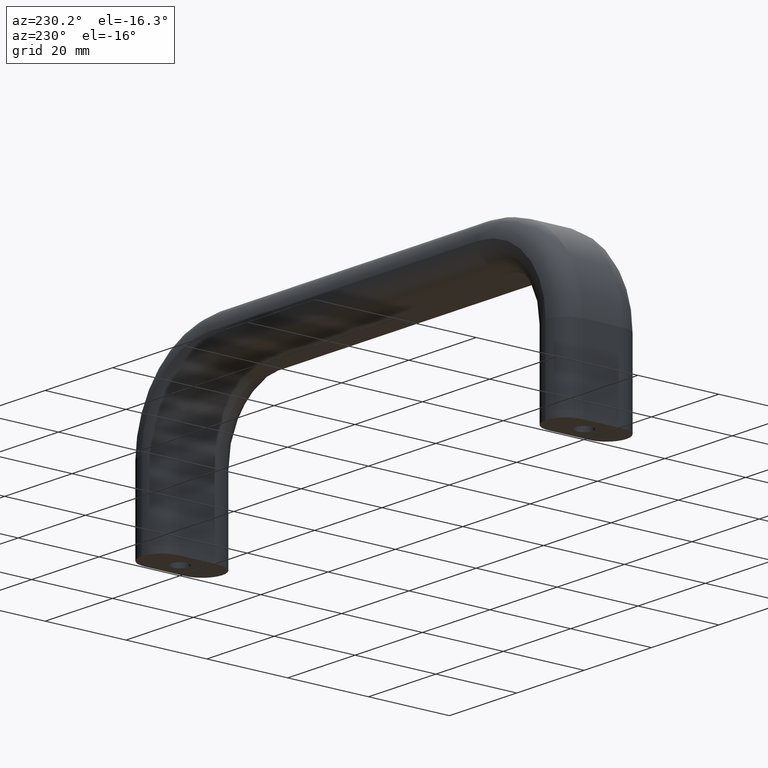
[diagram: clean part render]
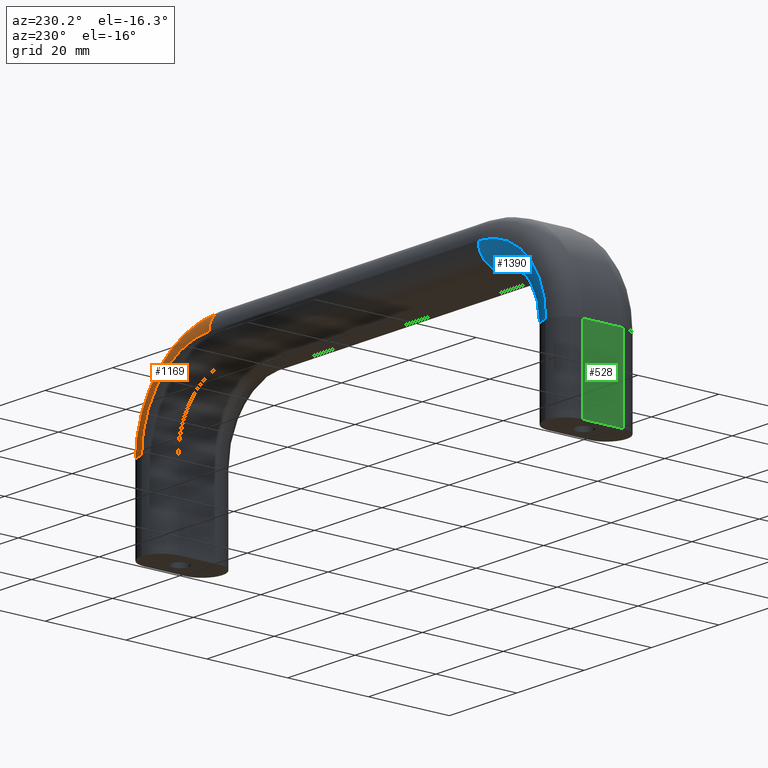
[diagram: same view with three faces highlighted in distinct colors, each labeled with its STEP entity id]
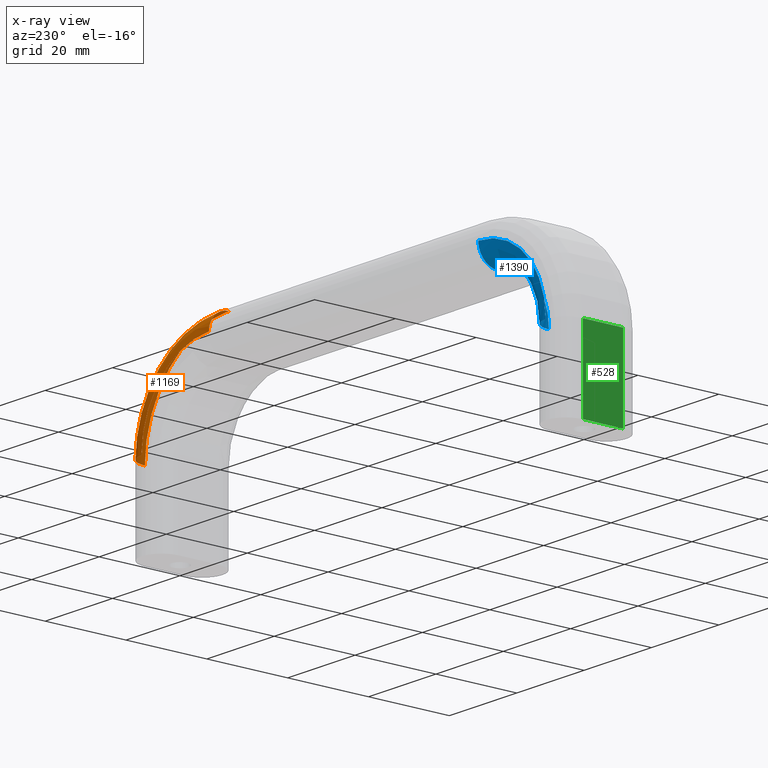
[diagram: x-ray of the same camera — body ghosted, the three highlighted faces saturated]
A machine part, auxiliary view with three faces highlighted in distinct colors.
The next image is the same camera in x-ray (body ghosted, the three faces saturated) — at least one of them is partly hidden behind the body in this view.
Their STEP definitions:

[orange] entity #1169 — the highlighted face is a freeform B-spline surface patch.
#89=CARTESIAN_POINT('',(120.0,9.500000000000002,20.0));
#90=VERTEX_POINT('',#89);
#258=CARTESIAN_POINT('',(125.0,4.500000000000001,20.0));
#259=VERTEX_POINT('',#258);
#260=CARTESIAN_POINT('',(120.0,4.500000000000001,20.0));
#261=DIRECTION('',(0.0,6.123234E-017,1.0));
#262=DIRECTION('',(1.0,0.0,0.0));
#263=AXIS2_PLACEMENT_3D('',#260,#261,#262);
#264=CIRCLE('',#263,5.0);
#265=EDGE_CURVE('',#259,#90,#264,.T.);
#567=CARTESIAN_POINT('',(100.0,4.500000000000003,45.0));
#568=VERTEX_POINT('',#567);
#604=CARTESIAN_POINT('',(100.0,4.500000000000001,20.0));
#605=DIRECTION('',(0.0,-1.0,6.123234E-017));
#606=DIRECTION('',(1.0,0.0,0.0));
#607=AXIS2_PLACEMENT_3D('',#604,#605,#606);
#608=CIRCLE('',#607,25.0);
#609=EDGE_CURVE('',#259,#568,#608,.T.);
#1071=CARTESIAN_POINT('',(125.0,4.500000000000001,20.0));
#1072=CARTESIAN_POINT('',(125.0,5.150301073387095,20.0));
#1073=CARTESIAN_POINT('',(124.739806119421080,6.465139086716375,20.0));
#1074=CARTESIAN_POINT('',(123.627064557364780,8.127064557364738,20.000000000000004));
#1075=CARTESIAN_POINT('',(121.965139086716320,9.239806119421106,19.999999999999993));
#1076=CARTESIAN_POINT('',(120.650301073387100,9.500000000000002,20.0));
#1077=CARTESIAN_POINT('',(120.0,9.500000000000002,20.0));
#1078=CARTESIAN_POINT('',(125.0,4.500000000000001,21.633619005492676));
#1079=CARTESIAN_POINT('',(125.0,5.150301073387094,21.633619005492676));
#1080=CARTESIAN_POINT('',(124.739806119421060,6.465139086716373,21.616616698755610));
#1081=CARTESIAN_POINT('',(123.627064557364760,8.127064557364736,21.543904868196542));
#1082=CARTESIAN_POINT('',(121.965139086716330,9.239806119421104,21.435306746813989));
#1083=CARTESIAN_POINT('',(120.650301073387100,9.500000000000000,21.349388972105238));
#1084=CARTESIAN_POINT('',(119.999999999999970,9.500000000000002,21.306895204394142));
#1085=CARTESIAN_POINT('',(124.677690791095700,4.499999999999998,24.909910774615561));
#1086=CARTESIAN_POINT('',(124.677690791095700,5.150301073387089,24.909910774615561));
#1087=CARTESIAN_POINT('',(124.420851425869190,6.465139086716365,24.858809625105820));
#1088=CARTESIAN_POINT('',(123.322455737916140,8.127064557364728,24.640271153709719));
#1089=CARTESIAN_POINT('',(121.681956422615850,9.239806119421095,24.313874922711925));
#1090=CARTESIAN_POINT('',(120.384069785283090,9.499999999999995,24.055645429571147));
#1091=CARTESIAN_POINT('',(119.742152632876550,9.499999999999996,23.927928619692448));
#1092=CARTESIAN_POINT('',(123.245874291649490,4.500000000000004,29.628432083025714));
#1093=CARTESIAN_POINT('',(123.245874291649490,5.150301073387100,29.628432083025714));
#1094=CARTESIAN_POINT('',(123.003936922073760,6.465139086716384,29.528221718722797));
#1095=CARTESIAN_POINT('',(121.969270903247560,8.127064557364747,29.099663456474019));
#1096=CARTESIAN_POINT('',(120.423954480336160,9.239806119421111,28.459593995626481));
#1097=CARTESIAN_POINT('',(119.201372113466850,9.500000000000005,27.953200855165633));
#1098=CARTESIAN_POINT('',(118.596699433319590,9.500000000000005,27.702745666420576));
#1099=CARTESIAN_POINT('',(120.920741918999450,4.500000000000000,33.978875748045049));
#1100=CARTESIAN_POINT('',(120.920741918999450,5.150301073387093,33.978875748045049));
#1101=CARTESIAN_POINT('',(120.703003958019660,6.465139086716371,33.833387030964474));
#1102=CARTESIAN_POINT('',(119.771828796326730,8.127064557364733,33.211191989537653));
#1103=CARTESIAN_POINT('',(118.381080241924820,9.239806119421097,32.281918003269425));
#1104=CARTESIAN_POINT('',(117.280784772238750,9.500000000000000,31.546719714583986));
#1105=CARTESIAN_POINT('',(116.736593535199570,9.500000000000000,31.183100598436038));
#1106=CARTESIAN_POINT('',(117.791599877734430,4.500000000000003,37.791599877734406));
#1107=CARTESIAN_POINT('',(117.791599877734430,5.150301073387097,37.791599877734406));
#1108=CARTESIAN_POINT('',(117.606429261178590,6.465139086716375,37.606429261178619));
#1109=CARTESIAN_POINT('',(116.814531155601400,8.127064557364742,36.814531155601330));
#1110=CARTESIAN_POINT('',(115.631798635585600,9.239806119421107,35.631798635585696));
#1111=CARTESIAN_POINT('',(114.696075762098120,9.500000000000004,34.696075762098090));
#1112=CARTESIAN_POINT('',(114.233279902187520,9.500000000000004,34.233279902187519));
#1113=CARTESIAN_POINT('',(113.978875748045060,4.500000000000001,40.920741918999482));
#1114=CARTESIAN_POINT('',(113.978875748045060,5.150301073387094,40.920741918999482));
#1115=CARTESIAN_POINT('',(113.833387030964460,6.465139086716378,40.703003958019721));
#1116=CARTESIAN_POINT('',(113.211191989537580,8.127064557364744,39.771828796326702));
#1117=CARTESIAN_POINT('',(112.281918003269500,9.239806119421107,38.381080241924835));
#1118=CARTESIAN_POINT('',(111.546719714583990,9.500000000000004,37.280784772238775));
#1119=CARTESIAN_POINT('',(111.183100598436030,9.500000000000004,36.736593535199582));
#1120=CARTESIAN_POINT('',(109.628432083025730,4.500000000000004,43.245874291649464));
#1121=CARTESIAN_POINT('',(109.628432083025730,5.150301073387100,43.245874291649464));
#1122=CARTESIAN_POINT('',(109.528221718722790,6.465139086716378,43.003936922073699));
#1123=CARTESIAN_POINT('',(109.099663456474090,8.127064557364745,41.969270903247498));
#1124=CARTESIAN_POINT('',(108.459593995626420,9.239806119421109,40.423954480336185));
#1125=CARTESIAN_POINT('',(107.953200855165630,9.500000000000005,39.201372113466810));
#1126=CARTESIAN_POINT('',(107.702745666420580,9.500000000000005,38.596699433319571));
#1127=CARTESIAN_POINT('',(104.909910774615600,4.500000000000002,44.677690791095742));
#1128=CARTESIAN_POINT('',(104.909910774615600,5.150301073387098,44.677690791095742));
#1129=CARTESIAN_POINT('',(104.858809625105810,6.465139086716378,44.420851425869301));
#1130=CARTESIAN_POINT('',(104.640271153709730,8.127064557364744,43.322455737916172));
#1131=CARTESIAN_POINT('',(104.313874922711960,9.239806119421107,41.681956422615912));
#1132=CARTESIAN_POINT('',(104.055645429571160,9.500000000000004,40.384069785283160));
#1133=CARTESIAN_POINT('',(103.927928619692470,9.500000000000004,39.742152632876596));
#1134=CARTESIAN_POINT('',(101.633619005492680,4.500000000000003,45.0));
#1135=CARTESIAN_POINT('',(101.633619005492680,5.150301073387097,45.0));
#1136=CARTESIAN_POINT('',(101.616616698755580,6.465139086716376,44.739806119421090));
#1137=CARTESIAN_POINT('',(101.543904868196560,8.127064557364744,43.627064557364747));
#1138=CARTESIAN_POINT('',(101.435306746813980,9.239806119421107,41.965139086716377));
#1139=CARTESIAN_POINT('',(101.349388972105230,9.500000000000004,40.650301073387119));
#1140=CARTESIAN_POINT('',(101.306895204394140,9.500000000000004,39.999999999999986));
#1141=CARTESIAN_POINT('',(100.0,4.500000000000003,45.0));
#1142=CARTESIAN_POINT('',(100.0,5.150301073387097,45.0));
#1143=CARTESIAN_POINT('',(99.999999999999972,6.465139086716375,44.739806119421090));
#1144=CARTESIAN_POINT('',(100.000000000000030,8.127064557364744,43.627064557364754));
#1145=CARTESIAN_POINT('',(99.999999999999972,9.239806119421107,41.965139086716363));
#1146=CARTESIAN_POINT('',(100.0,9.500000000000004,40.650301073387098));
#1147=CARTESIAN_POINT('',(100.0,9.500000000000004,40.0));
#1148=B_SPLINE_SURFACE_WITH_KNOTS('',3,3,((#1071,#1078,#1085,#1092,#1099,#1106,#1113,#1120,#1127,#1134,#1141),(#1072,#1079,#1086,#1093,#1100,#1107,#1114,#1121,#1128,#1135,#1142),(#1073,#1080,#1087,#1094,#1101,#1108,#1115,#1122,#1129,#1136,#1143),(#1074,#1081,#1088,#1095,#1102,#1109,#1116,#1123,#1130,#1137,#1144),(#1075,#1082,#1089,#1096,#1103,#1110,#1117,#1124,#1131,#1138,#1145),(#1076,#1083,#1090,#1097,#1104,#1111,#1118,#1125,#1132,#1139,#1146),(#1077,#1084,#1091,#1098,#1105,#1112,#1119,#1126,#1133,#1140,#1147)),.UNSPECIFIED.,.F.,.F.,.U.,(4,1,1,1,4),(4,1,1,1,1,1,1,1,4),(0.0,1.950903220161283,3.901806440322565,5.852709660483848,7.803612880645131),(0.0,4.511468193996026,9.022936387992051,13.534404581988076,18.045872775984105,22.557340969980132,27.068809163976152,31.580277357972182,36.091745551968202),.UNSPECIFIED.);
#1149=ORIENTED_EDGE('',*,*,#265,.T.);
#1150=CARTESIAN_POINT('',(100.0,9.500000000000002,40.0));
#1151=VERTEX_POINT('',#1150);
#1152=CARTESIAN_POINT('',(100.0,9.500000000000002,20.0));
#1153=DIRECTION('',(0.0,1.0,-6.123234E-017));
#1154=DIRECTION('',(1.0,0.0,0.0));
#1155=AXIS2_PLACEMENT_3D('',#1152,#1153,#1154);
#1156=CIRCLE('',#1155,20.0);
#1157=EDGE_CURVE('',#1151,#90,#1156,.T.);
#1158=ORIENTED_EDGE('',*,*,#1157,.F.);
#1159=CARTESIAN_POINT('',(100.0,4.500000000000003,40.0));
#1160=DIRECTION('',(-1.0,0.0,0.0));
#1161=DIRECTION('',(0.0,6.123234E-017,1.0));
#1162=AXIS2_PLACEMENT_3D('',#1159,#1160,#1161);
#1163=CIRCLE('',#1162,5.0);
#1164=EDGE_CURVE('',#568,#1151,#1163,.T.);
#1165=ORIENTED_EDGE('',*,*,#1164,.F.);
#1166=ORIENTED_EDGE('',*,*,#609,.F.);
#1167=EDGE_LOOP('',(#1149,#1158,#1165,#1166));
#1168=FACE_OUTER_BOUND('',#1167,.T.);
#1169=ADVANCED_FACE('',(#1168),#1148,.T.);

[blue] entity #1390 — the highlighted face is a freeform B-spline surface patch.
#200=CARTESIAN_POINT('',(0.0,9.500000000000002,20.0));
#201=VERTEX_POINT('',#200);
#208=CARTESIAN_POINT('',(5.0,4.500000000000001,20.0));
#209=VERTEX_POINT('',#208);
#210=CARTESIAN_POINT('',(0.0,4.500000000000001,20.0));
#211=DIRECTION('',(0.0,6.123234E-017,1.0));
#212=DIRECTION('',(1.0,0.0,0.0));
#213=AXIS2_PLACEMENT_3D('',#210,#211,#212);
#214=CIRCLE('',#213,5.0);
#215=EDGE_CURVE('',#209,#201,#214,.T.);
#445=CARTESIAN_POINT('',(20.0,4.500000000000002,35.0));
#446=VERTEX_POINT('',#445);
#482=CARTESIAN_POINT('',(20.0,4.500000000000001,20.0));
#483=DIRECTION('',(0.0,1.0,-6.123234E-017));
#484=DIRECTION('',(1.0,0.0,0.0));
#485=AXIS2_PLACEMENT_3D('',#482,#483,#484);
#486=CIRCLE('',#485,15.0);
#487=EDGE_CURVE('',#209,#446,#486,.T.);
#1176=CARTESIAN_POINT('',(20.0,9.500000000000002,40.0));
#1177=VERTEX_POINT('',#1176);
#1274=CARTESIAN_POINT('',(20.0,9.500000000000002,20.0));
#1275=DIRECTION('',(0.0,1.0,-6.123234E-017));
#1276=DIRECTION('',(1.0,0.0,0.0));
#1277=AXIS2_PLACEMENT_3D('',#1274,#1275,#1276);
#1278=CIRCLE('',#1277,20.0);
#1279=EDGE_CURVE('',#201,#1177,#1278,.T.);
#1286=CARTESIAN_POINT('',(5.0,4.500000000000001,20.000000000000004));
#1287=CARTESIAN_POINT('',(5.0,5.150301073387095,20.000000000000004));
#1288=CARTESIAN_POINT('',(4.739806119421106,6.465139086716378,20.000000000000007));
#1289=CARTESIAN_POINT('',(3.627064557364735,8.127064557364735,20.0));
#1290=CARTESIAN_POINT('',(1.965139086716377,9.239806119421107,20.000000000000004));
#1291=CARTESIAN_POINT('',(0.650301073387094,9.500000000000002,20.000000000000004));
#1292=CARTESIAN_POINT('',(0.0,9.500000000000002,20.000000000000004));
#1293=CARTESIAN_POINT('',(4.999999999999999,4.500000000000001,20.980171403295611));
#1294=CARTESIAN_POINT('',(4.999999999999999,5.150301073387095,20.980171403295611));
#1295=CARTESIAN_POINT('',(4.739806119421102,6.465139086716378,20.997173710032676));
#1296=CARTESIAN_POINT('',(3.627064557364733,8.127064557364735,21.069885540591745));
#1297=CARTESIAN_POINT('',(1.965139086716376,9.239806119421107,21.178483661974290));
#1298=CARTESIAN_POINT('',(0.650301073387093,9.500000000000002,21.264401436683048));
#1299=CARTESIAN_POINT('',(-6.879502E-016,9.500000000000002,21.306895204394145));
#1300=CARTESIAN_POINT('',(5.145409468943575,4.499999999999999,22.456318732202266));
#1301=CARTESIAN_POINT('',(5.145409468943575,5.150301073387094,22.456318732202266));
#1302=CARTESIAN_POINT('',(4.887737898631170,6.465139086716374,22.498926672393630));
#1303=CARTESIAN_POINT('',(3.785783213882139,8.127064557364733,22.681143201925561));
#1304=CARTESIAN_POINT('',(2.139968389907832,9.239806119421102,22.953291112930746));
#1305=CARTESIAN_POINT('',(0.837876369729553,9.500000000000000,23.168601862394244));
#1306=CARTESIAN_POINT('',(0.193879291924769,9.500000000000000,23.275091642936367));
#1307=CARTESIAN_POINT('',(5.622870687048849,4.500000000000001,24.361180267527267));
#1308=CARTESIAN_POINT('',(5.622870687048849,5.150301073387094,24.361180267527267));
#1309=CARTESIAN_POINT('',(5.373481282547429,6.465139086716377,24.436830428708056));
#1310=CARTESIAN_POINT('',(4.306945993908778,8.127064557364733,24.760354864927908));
#1311=CARTESIAN_POINT('',(2.714031500575539,9.239806119421107,25.243551969507415));
#1312=CARTESIAN_POINT('',(1.453791757694279,9.500000000000002,25.625835009422502));
#1313=CARTESIAN_POINT('',(0.830494249398466,9.500000000000002,25.814907023369681));
#1314=CARTESIAN_POINT('',(6.284415185898468,4.500000000000001,26.210794227283920));
#1315=CARTESIAN_POINT('',(6.284415185898468,5.150301073387097,26.210794227283920));
#1316=CARTESIAN_POINT('',(6.046501103419129,6.465139086716378,26.318528270715539));
#1317=CARTESIAN_POINT('',(5.029041018715138,8.127064557364740,26.779262195387414));
#1318=CARTESIAN_POINT('',(3.509422368888921,9.239806119421109,27.467387336672701));
#1319=CARTESIAN_POINT('',(2.307170882980752,9.500000000000004,28.011799892872631));
#1320=CARTESIAN_POINT('',(1.712553581197955,9.500000000000004,28.281058969711900));
#1321=CARTESIAN_POINT('',(7.447635609011686,4.500000000000002,28.387584936209876));
#1322=CARTESIAN_POINT('',(7.447635609011686,5.150301073387095,28.387584936209876));
#1323=CARTESIAN_POINT('',(7.229899048922910,6.465139086716375,28.533078154425695));
#1324=CARTESIAN_POINT('',(6.298729878260973,8.127064557364733,29.155292445345623));
#1325=CARTESIAN_POINT('',(4.907990271711446,9.239806119421106,30.084595181526527));
#1326=CARTESIAN_POINT('',(3.807701881149292,9.500000000000002,30.819816215803645));
#1327=CARTESIAN_POINT('',(3.263514145348917,9.500000000000002,31.183446581613154));
#1328=CARTESIAN_POINT('',(9.325084755102232,4.500000000000001,30.674915244897768));
#1329=CARTESIAN_POINT('',(9.325084755102232,5.150301073387097,30.674915244897768));
#1330=CARTESIAN_POINT('',(9.139914913607516,6.465139086716379,30.860085086392495));
#1331=CARTESIAN_POINT('',(8.348020122645721,8.127064557364736,31.651979877354279));
#1332=CARTESIAN_POINT('',(7.165292553145182,9.239806119421107,32.834707446854814));
#1333=CARTESIAN_POINT('',(6.229573596274525,9.499999999999998,33.770426403725480));
#1334=CARTESIAN_POINT('',(5.766779673469640,9.499999999999998,34.233220326530365));
#1335=CARTESIAN_POINT('',(11.612415063790124,4.500000000000002,32.552364390988316));
#1336=CARTESIAN_POINT('',(11.612415063790124,5.150301073387094,32.552364390988316));
#1337=CARTESIAN_POINT('',(11.466921845574291,6.465139086716375,32.770100951077062));
#1338=CARTESIAN_POINT('',(10.844707554654377,8.127064557364738,33.701270121739029));
#1339=CARTESIAN_POINT('',(9.915404818473466,9.239806119421107,35.092009728288559));
#1340=CARTESIAN_POINT('',(9.180183784196348,9.500000000000004,36.192298118850701));
#1341=CARTESIAN_POINT('',(8.816553418386832,9.500000000000004,36.736485854651079));
#1342=CARTESIAN_POINT('',(13.789205772716091,4.500000000000002,33.715584814101533));
#1343=CARTESIAN_POINT('',(13.789205772716091,5.150301073387096,33.715584814101533));
#1344=CARTESIAN_POINT('',(13.681471729284485,6.465139086716378,33.953498896580889));
#1345=CARTESIAN_POINT('',(13.220737804612577,8.127064557364744,34.970958981284859));
#1346=CARTESIAN_POINT('',(12.532612663327322,9.239806119421104,36.490577631111101));
#1347=CARTESIAN_POINT('',(11.988200107127387,9.500000000000000,37.692829117019244));
#1348=CARTESIAN_POINT('',(11.718941030288118,9.500000000000000,38.287446418802048));
#1349=CARTESIAN_POINT('',(15.638819732472736,4.500000000000002,34.377129312951148));
#1350=CARTESIAN_POINT('',(15.638819732472736,5.150301073387095,34.377129312951148));
#1351=CARTESIAN_POINT('',(15.563169571291940,6.465139086716380,34.626518717452555));
#1352=CARTESIAN_POINT('',(15.239645135072092,8.127064557364733,35.693054006091216));
#1353=CARTESIAN_POINT('',(14.756448030492583,9.239806119421111,37.285968499424435));
#1354=CARTESIAN_POINT('',(14.374164990577492,9.500000000000004,38.546208242305724));
#1355=CARTESIAN_POINT('',(14.185092976630317,9.500000000000004,39.169505750601530));
#1356=CARTESIAN_POINT('',(17.543681267797719,4.500000000000002,34.854590531056424));
#1357=CARTESIAN_POINT('',(17.543681267797719,5.150301073387096,34.854590531056417));
#1358=CARTESIAN_POINT('',(17.501073327606356,6.465139086716376,35.112262101368856));
#1359=CARTESIAN_POINT('',(17.318856798074417,8.127064557364744,36.214216786117845));
#1360=CARTESIAN_POINT('',(17.046708887069258,9.239806119421104,37.860031610092186));
#1361=CARTESIAN_POINT('',(16.831398137605760,9.500000000000002,39.162123630270443));
#1362=CARTESIAN_POINT('',(16.724908357063633,9.500000000000002,39.806120708075227));
#1363=CARTESIAN_POINT('',(19.019828596704393,4.500000000000002,35.0));
#1364=CARTESIAN_POINT('',(19.019828596704393,5.150301073387096,35.000000000000007));
#1365=CARTESIAN_POINT('',(19.002826289967331,6.465139086716378,35.260193880578910));
#1366=CARTESIAN_POINT('',(18.930114459408255,8.127064557364740,36.372935442635253));
#1367=CARTESIAN_POINT('',(18.821516338025717,9.239806119421107,38.034860913283630));
#1368=CARTESIAN_POINT('',(18.735598563316959,9.500000000000004,39.349698926612902));
#1369=CARTESIAN_POINT('',(18.693104795605858,9.500000000000004,40.000000000000007));
#1370=CARTESIAN_POINT('',(20.0,4.500000000000002,35.0));
#1371=CARTESIAN_POINT('',(20.0,5.150301073387096,35.0));
#1372=CARTESIAN_POINT('',(20.0,6.465139086716379,35.260193880578889));
#1373=CARTESIAN_POINT('',(20.0,8.127064557364736,36.372935442635267));
#1374=CARTESIAN_POINT('',(20.0,9.239806119421109,38.034860913283623));
#1375=CARTESIAN_POINT('',(20.0,9.500000000000004,39.349698926612902));
#1376=CARTESIAN_POINT('',(20.0,9.500000000000004,40.0));
#1377=B_SPLINE_SURFACE_WITH_KNOTS('',3,3,((#1286,#1293,#1300,#1307,#1314,#1321,#1328,#1335,#1342,#1349,#1356,#1363,#1370),(#1287,#1294,#1301,#1308,#1315,#1322,#1329,#1336,#1343,#1350,#1357,#1364,#1371),(#1288,#1295,#1302,#1309,#1316,#1323,#1330,#1337,#1344,#1351,#1358,#1365,#1372),(#1289,#1296,#1303,#1310,#1317,#1324,#1331,#1338,#1345,#1352,#1359,#1366,#1373),(#1290,#1297,#1304,#1311,#1318,#1325,#1332,#1339,#1346,#1353,#1360,#1367,#1374),(#1291,#1298,#1305,#1312,#1319,#1326,#1333,#1340,#1347,#1354,#1361,#1368,#1375),(#1292,#1299,#1306,#1313,#1320,#1327,#1334,#1341,#1348,#1355,#1362,#1369,#1376)),.UNSPECIFIED.,.F.,.F.,.U.,(4,1,1,1,4),(4,1,1,1,1,1,1,1,1,1,4),(0.0,1.950903220161283,3.901806440322566,5.852709660483849,7.803612880645131),(0.0,3.329903032368826,4.996862474205125,6.663821916041431,9.993724948410250,13.323627980779074,16.653531013147905,19.983434045516717,21.650393487353021,23.317352929189330,26.647255961558148),.UNSPECIFIED.);
#1378=ORIENTED_EDGE('',*,*,#215,.T.);
#1379=ORIENTED_EDGE('',*,*,#1279,.T.);
#1380=CARTESIAN_POINT('',(20.0,4.500000000000003,40.0));
#1381=DIRECTION('',(1.0,0.0,0.0));
#1382=DIRECTION('',(0.0,-6.123234E-017,-1.0));
#1383=AXIS2_PLACEMENT_3D('',#1380,#1381,#1382);
#1384=CIRCLE('',#1383,5.0);
#1385=EDGE_CURVE('',#446,#1177,#1384,.T.);
#1386=ORIENTED_EDGE('',*,*,#1385,.F.);
#1387=ORIENTED_EDGE('',*,*,#487,.F.);
#1388=EDGE_LOOP('',(#1378,#1379,#1386,#1387));
#1389=FACE_OUTER_BOUND('',#1388,.T.);
#1390=ADVANCED_FACE('',(#1389),#1377,.T.);

[green] entity #528 — the highlighted planar face has unit normal (-1, 0, 0).
#138=CARTESIAN_POINT('',(-5.0,-5.500000000000000,3.367779E-016));
#139=VERTEX_POINT('',#138);
#147=CARTESIAN_POINT('',(-5.0,4.500000000000000,-2.755455E-016));
#148=VERTEX_POINT('',#147);
#149=CARTESIAN_POINT('',(-5.0,4.500000000000000,-2.755455E-016));
#150=DIRECTION('',(0.0,-1.0,0.0));
#151=VECTOR('',#150,10.0);
#152=LINE('',#149,#151);
#153=EDGE_CURVE('',#148,#139,#152,.T.);
#231=CARTESIAN_POINT('',(-5.0,4.500000000000001,20.0));
#232=VERTEX_POINT('',#231);
#242=CARTESIAN_POINT('',(-5.0,4.500000000000001,20.0));
#243=DIRECTION('',(0.0,0.0,-1.0));
#244=VECTOR('',#243,20.0);
#245=LINE('',#242,#244);
#246=EDGE_CURVE('',#232,#148,#245,.T.);
#345=CARTESIAN_POINT('',(-5.0,-5.499999999999999,20.0));
#346=VERTEX_POINT('',#345);
#347=CARTESIAN_POINT('',(-5.0,-5.499999999999999,20.0));
#348=DIRECTION('',(0.0,0.0,-1.0));
#349=VECTOR('',#348,20.0);
#350=LINE('',#347,#349);
#351=EDGE_CURVE('',#346,#139,#350,.T.);
#512=CARTESIAN_POINT('',(-5.0,9.500000000000002,20.0));
#513=DIRECTION('',(-1.0,0.0,0.0));
#514=DIRECTION('',(0.0,0.0,-1.0));
#515=AXIS2_PLACEMENT_3D('',#512,#513,#514);
#516=PLANE('',#515);
#517=CARTESIAN_POINT('',(-5.0,4.500000000000002,20.0));
#518=DIRECTION('',(0.0,-1.0,0.0));
#519=VECTOR('',#518,10.0);
#520=LINE('',#517,#519);
#521=EDGE_CURVE('',#232,#346,#520,.T.);
#522=ORIENTED_EDGE('',*,*,#521,.F.);
#523=ORIENTED_EDGE('',*,*,#246,.T.);
#524=ORIENTED_EDGE('',*,*,#153,.T.);
#525=ORIENTED_EDGE('',*,*,#351,.F.);
#526=EDGE_LOOP('',(#522,#523,#524,#525));
#527=FACE_OUTER_BOUND('',#526,.T.);
#528=ADVANCED_FACE('',(#527),#516,.T.);